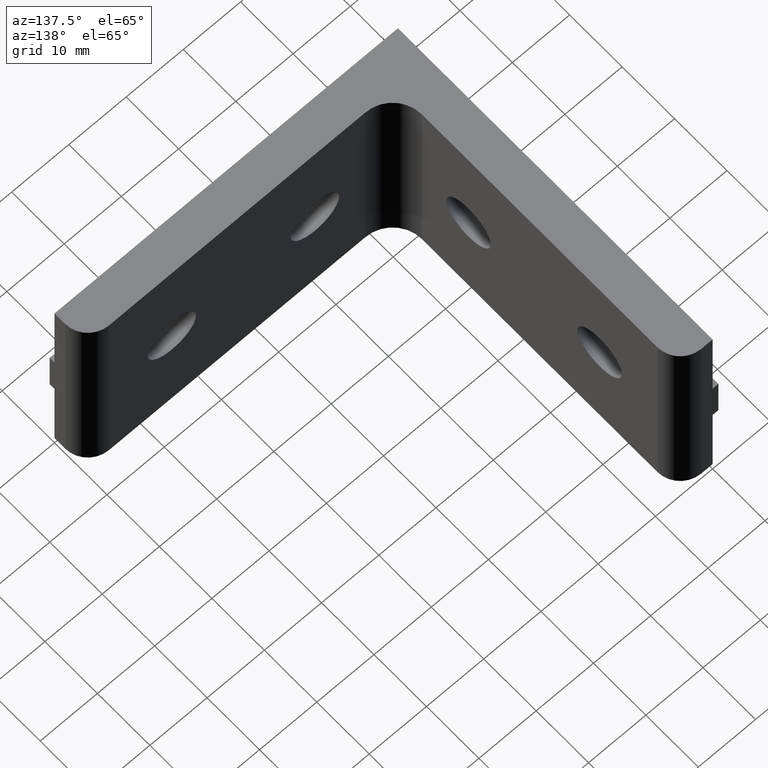
[diagram: clean part render]
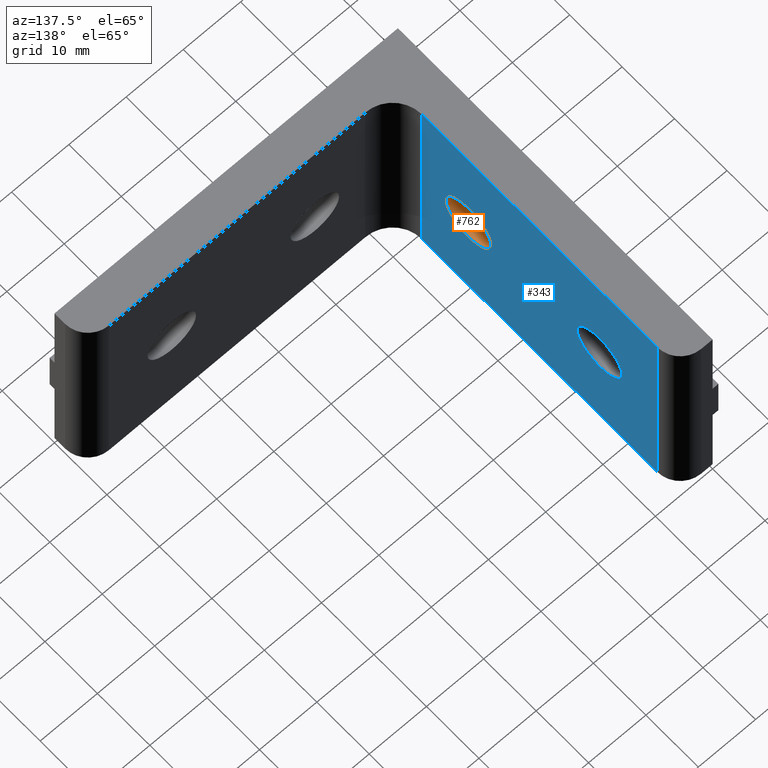
[diagram: same view with the hole feature highlighted: cylindrical wall and planar end face, labeled with their STEP entity ids]
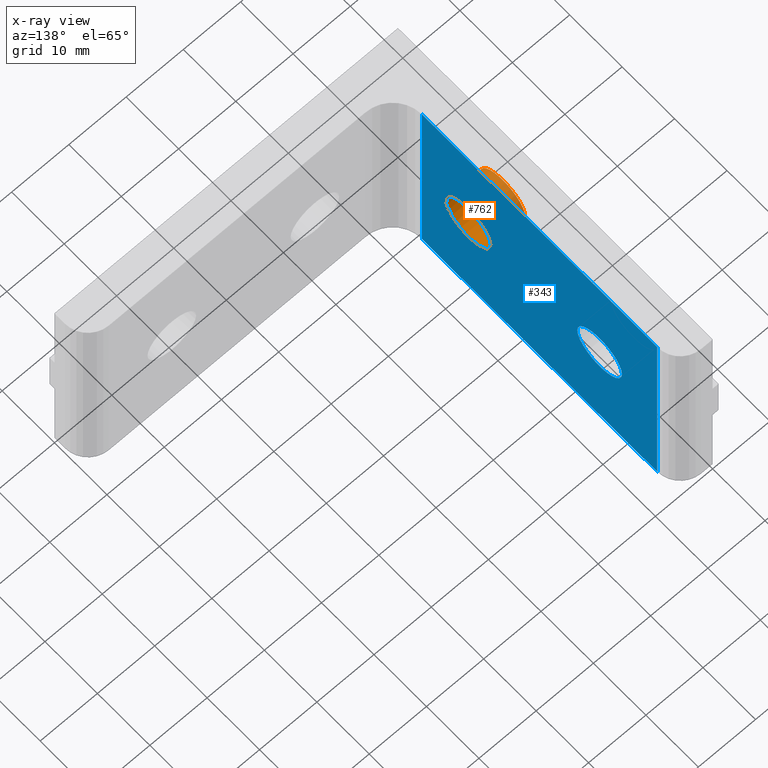
[diagram: x-ray of the same camera — body ghosted, the hole faces saturated]
A machine part, auxiliary view. The highlighted faces form one hole feature of diameter 8.5 mm: the cylindrical wall (entity #762, orange) and its adjacent planar end face (entity #343, blue) — they share a circular edge in the B-rep.
The next image is the same camera in x-ray (body ghosted, the hole faces saturated) — the bore reads through the body.
Wall:
#323=CARTESIAN_POINT('',(6.000001230408088,15.750000225197255,0.055967317574844));
#324=VERTEX_POINT('',#323);
#325=CARTESIAN_POINT('',(6.000001230408088,24.249994470565071,0.055967317574844));
#326=VERTEX_POINT('',#325);
#327=CARTESIAN_POINT('',(6.000001230408088,19.999997347881163,0.055967317574844));
#328=DIRECTION('',(-1.0,0.0,0.0));
#329=DIRECTION('',(0.0,-1.0,0.0));
#330=AXIS2_PLACEMENT_3D('',#327,#328,#329);
#331=CIRCLE('',#330,4.249997122683908);
#332=EDGE_CURVE('',#324,#326,#331,.T.);
#334=CARTESIAN_POINT('',(6.000001230408088,19.999997347881163,0.055967317574844));
#335=DIRECTION('',(-1.0,0.0,0.0));
#336=DIRECTION('',(0.0,-1.0,0.0));
#337=AXIS2_PLACEMENT_3D('',#334,#335,#336);
#338=CIRCLE('',#337,4.249997122683908);
#339=EDGE_CURVE('',#326,#324,#338,.T.);
#634=CARTESIAN_POINT('',(0.0,24.249994470565071,0.055967317574844));
#635=VERTEX_POINT('',#634);
#636=CARTESIAN_POINT('',(0.0,15.750000225197255,0.055967317574844));
#637=VERTEX_POINT('',#636);
#638=CARTESIAN_POINT('',(0.0,19.999997347881163,0.055967317574844));
#639=DIRECTION('',(-1.0,0.0,0.0));
#640=DIRECTION('',(0.0,-1.0,0.0));
#641=AXIS2_PLACEMENT_3D('',#638,#639,#640);
#642=CIRCLE('',#641,4.249997122683908);
#643=EDGE_CURVE('',#635,#637,#642,.T.);
#645=CARTESIAN_POINT('',(0.0,19.999997347881163,0.055967317574844));
#646=DIRECTION('',(-1.0,0.0,0.0));
#647=DIRECTION('',(0.0,-1.0,0.0));
#648=AXIS2_PLACEMENT_3D('',#645,#646,#647);
#649=CIRCLE('',#648,4.249997122683908);
#650=EDGE_CURVE('',#637,#635,#649,.T.);
#744=CARTESIAN_POINT('',(0.0,19.999997347881163,0.055967317574844));
#745=DIRECTION('',(-1.0,0.0,0.0));
#746=DIRECTION('',(0.0,-1.0,0.0));
#747=AXIS2_PLACEMENT_3D('',#744,#745,#746);
#748=CYLINDRICAL_SURFACE('',#747,4.249997122683908);
#749=CARTESIAN_POINT('',(0.0,15.750000225197255,0.055967317574844));
#750=DIRECTION('',(1.0,0.0,0.0));
#751=VECTOR('',#750,6.000001230408088);
#752=LINE('',#749,#751);
#753=EDGE_CURVE('',#637,#324,#752,.T.);
#754=ORIENTED_EDGE('',*,*,#753,.T.);
#755=ORIENTED_EDGE('',*,*,#339,.F.);
#756=ORIENTED_EDGE('',*,*,#332,.F.);
#757=ORIENTED_EDGE('',*,*,#753,.F.);
#758=ORIENTED_EDGE('',*,*,#650,.T.);
#759=ORIENTED_EDGE('',*,*,#643,.T.);
#760=EDGE_LOOP('',(#754,#755,#756,#757,#758,#759));
#761=FACE_OUTER_BOUND('',#760,.T.);
#762=ADVANCED_FACE('',(#761),#748,.F.);
End face:
#245=CARTESIAN_POINT('',(6.000001230408088,11.131713186279285,-18.999991966924856));
#246=VERTEX_POINT('',#245);
#254=CARTESIAN_POINT('',(6.000001230408088,11.131713186279285,18.999991966924856));
#255=VERTEX_POINT('',#254);
#256=CARTESIAN_POINT('',(6.000001230408088,11.131713186279285,-18.999991966924856));
#257=DIRECTION('',(0.0,0.0,1.0));
#258=VECTOR('',#257,37.999983933849713);
#259=LINE('',#256,#258);
#260=EDGE_CURVE('',#246,#255,#259,.T.);
#273=CARTESIAN_POINT('',(6.000001230408088,11.131713186279285,-18.999991966924856));
#274=DIRECTION('',(1.0,0.0,0.0));
#275=DIRECTION('',(0.0,1.0,0.0));
#276=AXIS2_PLACEMENT_3D('',#273,#274,#275);
#277=PLANE('',#276);
#278=CARTESIAN_POINT('',(6.000001230408543,55.999989355737398,-18.999991966924856));
#279=VERTEX_POINT('',#278);
#280=CARTESIAN_POINT('',(6.000001230408088,11.131713186279285,-18.999991966924856));
#281=DIRECTION('',(0.0,1.0,0.0));
#282=VECTOR('',#281,44.868276169458113);
#283=LINE('',#280,#282);
#284=EDGE_CURVE('',#246,#279,#283,.T.);
#285=ORIENTED_EDGE('',*,*,#284,.T.);
#286=CARTESIAN_POINT('',(6.000001230408543,55.999989355737398,18.999991966924856));
#287=VERTEX_POINT('',#286);
#288=CARTESIAN_POINT('',(6.000001230408543,55.999989355737398,-18.999991966924856));
#289=DIRECTION('',(0.0,0.0,1.0));
#290=VECTOR('',#289,37.999983933849713);
#291=LINE('',#288,#290);
#292=EDGE_CURVE('',#279,#287,#291,.T.);
#293=ORIENTED_EDGE('',*,*,#292,.T.);
#294=CARTESIAN_POINT('',(6.000001230408088,11.131713186279285,18.999991966924856));
#295=DIRECTION('',(0.0,1.0,0.0));
#296=VECTOR('',#295,44.868276169458113);
#297=LINE('',#294,#296);
#298=EDGE_CURVE('',#255,#287,#297,.T.);
#299=ORIENTED_EDGE('',*,*,#298,.F.);
#300=ORIENTED_EDGE('',*,*,#260,.F.);
#301=EDGE_LOOP('',(#285,#293,#299,#300));
#302=FACE_OUTER_BOUND('',#301,.T.);
#303=CARTESIAN_POINT('',(6.000001230408543,40.749994675097241,0.055967317574844));
#304=VERTEX_POINT('',#303);
#305=CARTESIAN_POINT('',(6.000001230408543,49.249988920465057,0.055967317574844));
#306=VERTEX_POINT('',#305);
#307=CARTESIAN_POINT('',(6.000001230408543,44.999991797781149,0.055967317574844));
#308=DIRECTION('',(-1.0,0.0,0.0));
#309=DIRECTION('',(0.0,-1.0,0.0));
#310=AXIS2_PLACEMENT_3D('',#307,#308,#309);
#311=CIRCLE('',#310,4.249997122683908);
#312=EDGE_CURVE('',#304,#306,#311,.T.);
#313=ORIENTED_EDGE('',*,*,#312,.T.);
#314=CARTESIAN_POINT('',(6.000001230408543,44.999991797781149,0.055967317574844));
#315=DIRECTION('',(-1.0,0.0,0.0));
#316=DIRECTION('',(0.0,-1.0,0.0));
#317=AXIS2_PLACEMENT_3D('',#314,#315,#316);
#318=CIRCLE('',#317,4.249997122683908);
#319=EDGE_CURVE('',#306,#304,#318,.T.);
#320=ORIENTED_EDGE('',*,*,#319,.T.);
#321=EDGE_LOOP('',(#313,#320));
#322=FACE_BOUND('',#321,.T.);
#323=CARTESIAN_POINT('',(6.000001230408088,15.750000225197255,0.055967317574844));
#324=VERTEX_POINT('',#323);
#325=CARTESIAN_POINT('',(6.000001230408088,24.249994470565071,0.055967317574844));
#326=VERTEX_POINT('',#325);
#327=CARTESIAN_POINT('',(6.000001230408088,19.999997347881163,0.055967317574844));
#328=DIRECTION('',(-1.0,0.0,0.0));
#329=DIRECTION('',(0.0,-1.0,0.0));
#330=AXIS2_PLACEMENT_3D('',#327,#328,#329);
#331=CIRCLE('',#330,4.249997122683908);
#332=EDGE_CURVE('',#324,#326,#331,.T.);
#333=ORIENTED_EDGE('',*,*,#332,.T.);
#334=CARTESIAN_POINT('',(6.000001230408088,19.999997347881163,0.055967317574844));
#335=DIRECTION('',(-1.0,0.0,0.0));
#336=DIRECTION('',(0.0,-1.0,0.0));
#337=AXIS2_PLACEMENT_3D('',#334,#335,#336);
#338=CIRCLE('',#337,4.249997122683908);
#339=EDGE_CURVE('',#326,#324,#338,.T.);
#340=ORIENTED_EDGE('',*,*,#339,.T.);
#341=EDGE_LOOP('',(#333,#340));
#342=FACE_BOUND('',#341,.T.);
#343=ADVANCED_FACE('',(#302,#322,#342),#277,.T.);